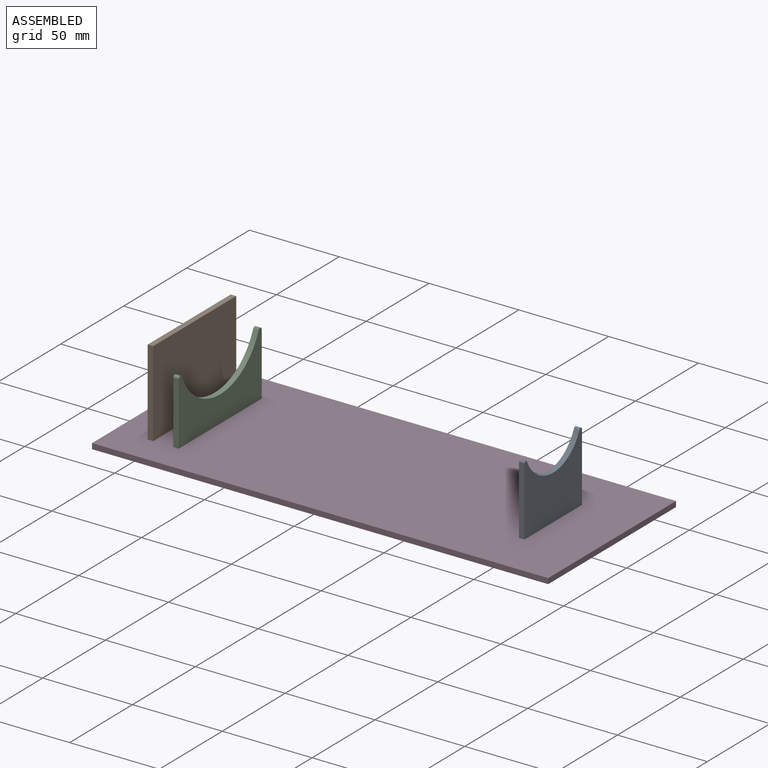
[diagram: assembled view]
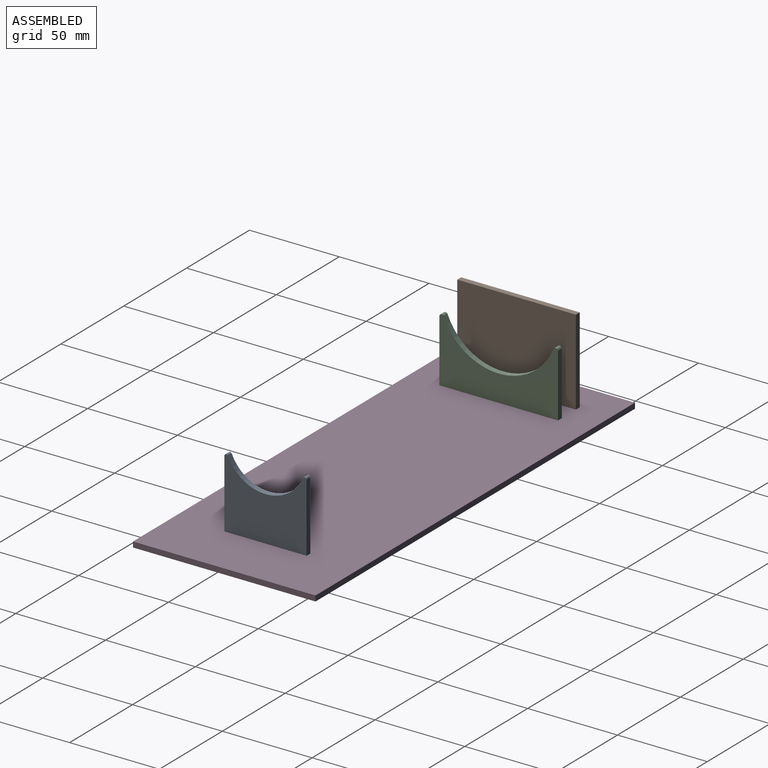
[diagram: assembled view, second angle]
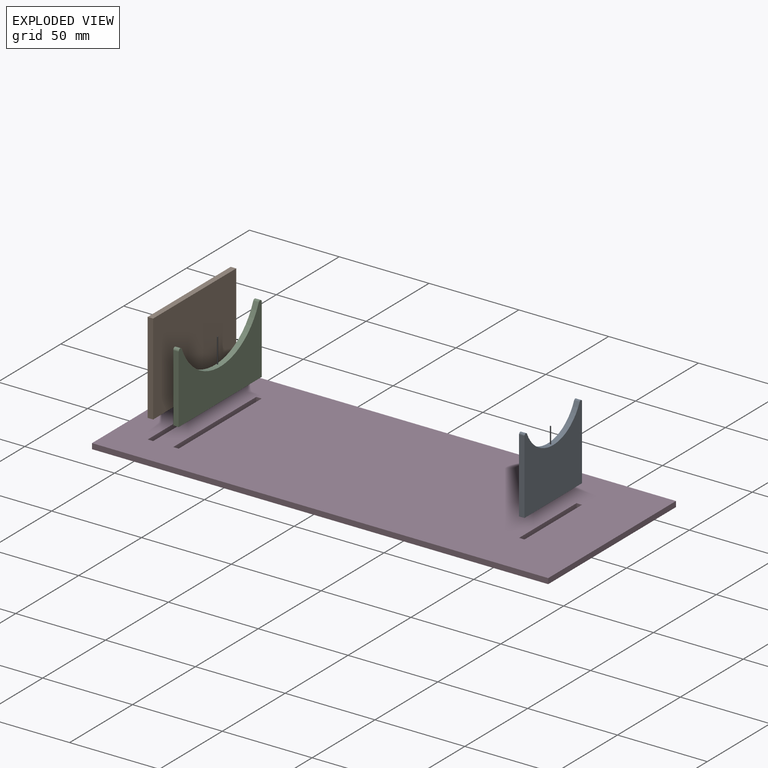
[diagram: exploded view]
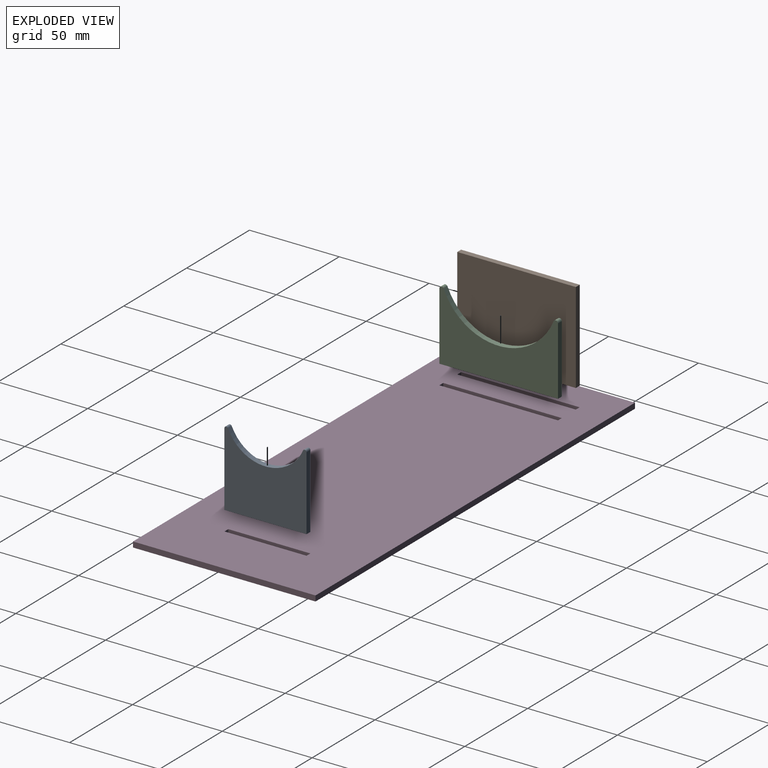
[diagram: exploded view, second angle]
ASSEMBLY  parts=4 mates=3
PART A: 8 faces, bbox 3x45.7x42.2 mm
  f0: plane 45.72x3.05mm, normal (0,0,-1), area 139.4mm2, adj f1,f3,f4,f5
  f1: plane 41.16x3.05mm, normal (0,1,0), area 125.5mm2, adj f0,f4,f5,f6
  f2: cylinder r=22.86mm len=41.83mm, axis (-1,0,0), area 161mm2, adj f4,f5,f6,f7
  f3: plane 41.16x3.05mm, normal (0,-1,0), area 125.5mm2, adj f0,f4,f5,f7
  f4: plane 45.72x42.18mm, normal (1,0,0), area 1491.6mm2, adj f0,f1,f2,f3,f6,f7
  f5: plane 45.72x42.18mm, normal (-1,0,0), area 1491.6mm2, adj f0,f1,f2,f3,f6,f7
  f6: cylinder r=1.02mm len=3.05mm, axis (-1,0,0), area 8.4mm2, adj f1,f2,f4,f5
  f7: cylinder r=1.02mm len=3.05mm, axis (-1,0,0), area 8.4mm2, adj f2,f3,f4,f5
PART B: 6 faces, bbox 3x66x50.8 mm
  f0: plane 66.04x3.05mm, normal (0,0,-1), area 201.3mm2, adj f1,f3,f4,f5
  f1: plane 50.8x3.05mm, normal (0,1,0), area 154.8mm2, adj f0,f2,f4,f5
  f2: plane 66.04x3.05mm, normal (0,0,1), area 201.3mm2, adj f1,f3,f4,f5
  f3: plane 50.8x3.05mm, normal (0,-1,0), area 154.8mm2, adj f0,f2,f4,f5
  f4: plane 66.04x50.8mm, normal (1,0,0), area 3354.8mm2, adj f0,f1,f2,f3
  f5: plane 66.04x50.8mm, normal (-1,0,0), area 3354.8mm2, adj f0,f1,f2,f3
PART C: 8 faces, bbox 3x66x39.1 mm
  f0: plane 66.04x3.05mm, normal (0,0,-1), area 201.3mm2, adj f1,f3,f4,f5
  f1: plane 37.85x3.05mm, normal (0,1,0), area 115.4mm2, adj f0,f4,f5,f6
  f2: cylinder r=33.02mm len=61.15mm, axis (-1,0,0), area 238.2mm2, adj f4,f5,f6,f7
  f3: plane 37.85x3.05mm, normal (0,-1,0), area 115.4mm2, adj f0,f4,f5,f7
  f4: plane 66.04x39.12mm, normal (1,0,0), area 1624.8mm2, adj f0,f1,f2,f3,f6,f7
  f5: plane 66.04x39.12mm, normal (-1,0,0), area 1624.8mm2, adj f0,f1,f2,f3,f6,f7
  f6: cylinder r=1.27mm len=3.05mm, axis (-1,0,0), area 10.7mm2, adj f1,f2,f4,f5
  f7: cylinder r=1.27mm len=3.05mm, axis (-1,0,0), area 10.7mm2, adj f2,f3,f4,f5
PART D: 18 faces, bbox 254x101.6x3 mm
  f0: plane 254x3.05mm, normal (0,-1,0), area 774.2mm2, adj f1,f15,f16,f17
  f1: plane 101.6x3.05mm, normal (1,0,0), area 309.7mm2, adj f0,f2,f16,f17
  f2: plane 254x3.05mm, normal (0,1,0), area 774.2mm2, adj f1,f15,f16,f17
  f3: plane 66.04x3.05mm, normal (1,0,0), area 201.3mm2, adj f4,f12,f16,f17
  f4: plane 3.05x3.05mm, normal (0,-1,0), area 9.3mm2, adj f3,f5,f16,f17
  f5: plane 66.04x3.05mm, normal (-1,0,0), area 201.3mm2, adj f4,f12,f16,f17
  f6: plane 45.72x3.05mm, normal (1,0,0), area 139.4mm2, adj f7,f13,f16,f17
  f7: plane 3.05x3.05mm, normal (0,-1,0), area 9.3mm2, adj f6,f8,f16,f17
  f8: plane 45.72x3.05mm, normal (-1,0,0), area 139.4mm2, adj f7,f13,f16,f17
  f9: plane 3.05x3.05mm, normal (0,-1,0), area 9.3mm2, adj f10,f14,f16,f17
  f10: plane 66.04x3.05mm, normal (-1,0,0), area 201.3mm2, adj f9,f11,f16,f17
  f11: plane 3.05x3.05mm, normal (0,1,0), area 9.3mm2, adj f10,f14,f16,f17
  f12: plane 3.05x3.05mm, normal (0,1,0), area 9.3mm2, adj f3,f5,f16,f17
  f13: plane 3.05x3.05mm, normal (0,1,0), area 9.3mm2, adj f6,f8,f16,f17
  f14: plane 66.04x3.05mm, normal (1,0,0), area 201.3mm2, adj f9,f11,f16,f17
  f15: plane 101.6x3.05mm, normal (-1,0,0), area 309.7mm2, adj f0,f2,f16,f17
  f16: plane 254x101.6mm, normal (0,0,1), area 25264.5mm2, adj f0,f1,f2,f3,f4,f5,f6,f7
  f17: plane 254x101.6mm, normal (0,0,-1), area 25264.5mm2, adj f0,f1,f2,f3,f4,f5,f6,f7
PLACE A t=(91.19,0,25.4)mm
PLACE B t=(-108.46,0,25.4)mm
PLACE C t=(-94.23,0,25.4)mm
PLACE D at identity
MATE planar C.f0 <-> D.f17  axis (0,0,-1) through (-92.71,0,0)mm
MATE planar B.f0 <-> D.f17  axis (0,0,-1) through (-106.93,0,0)mm
MATE planar A.f0 <-> D.f17  axis (0,0,-1) through (92.71,0,0)mm
